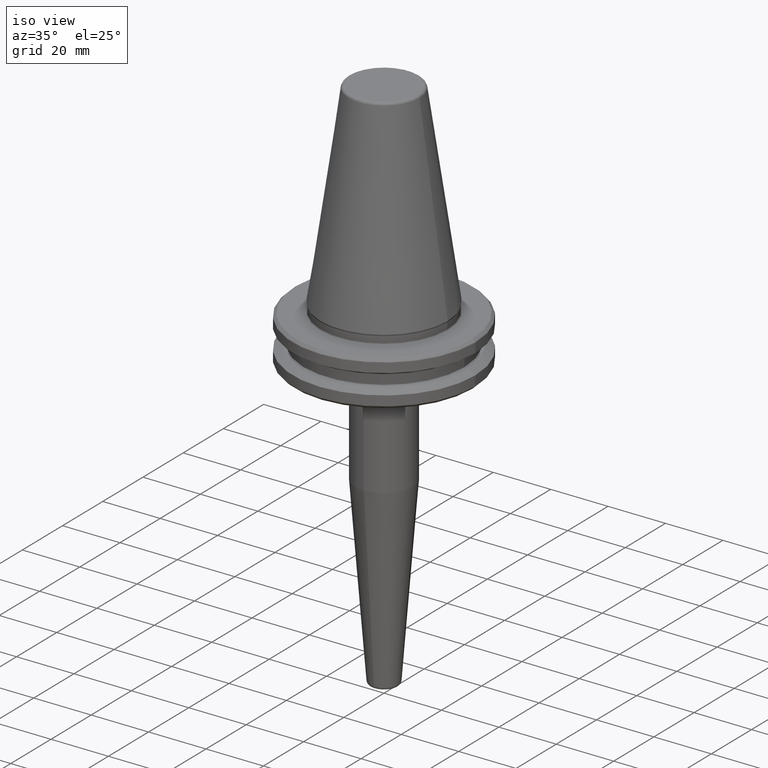
[diagram: clean part render]
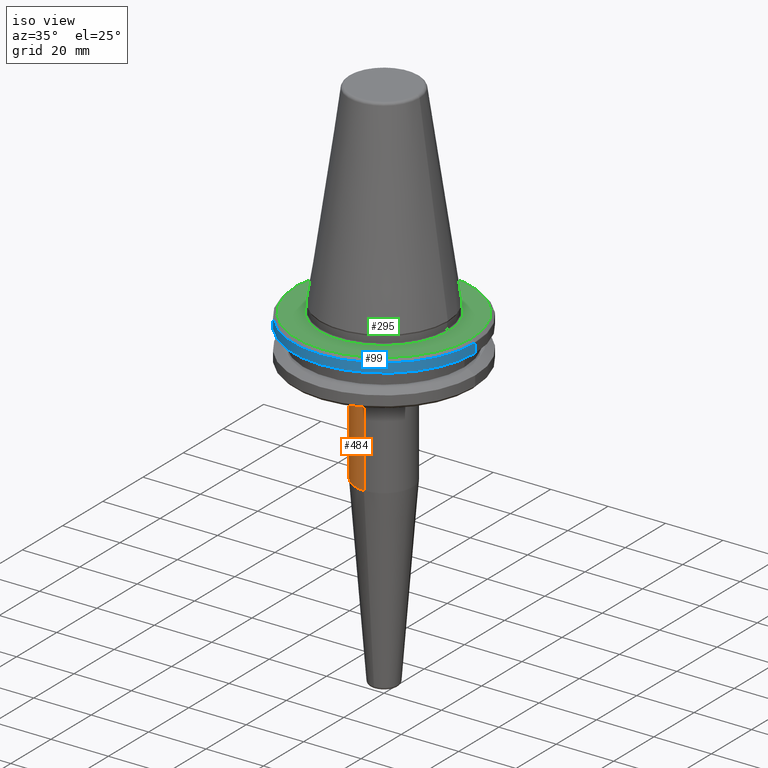
[diagram: same view with three faces highlighted in distinct colors, each labeled with its STEP entity id]
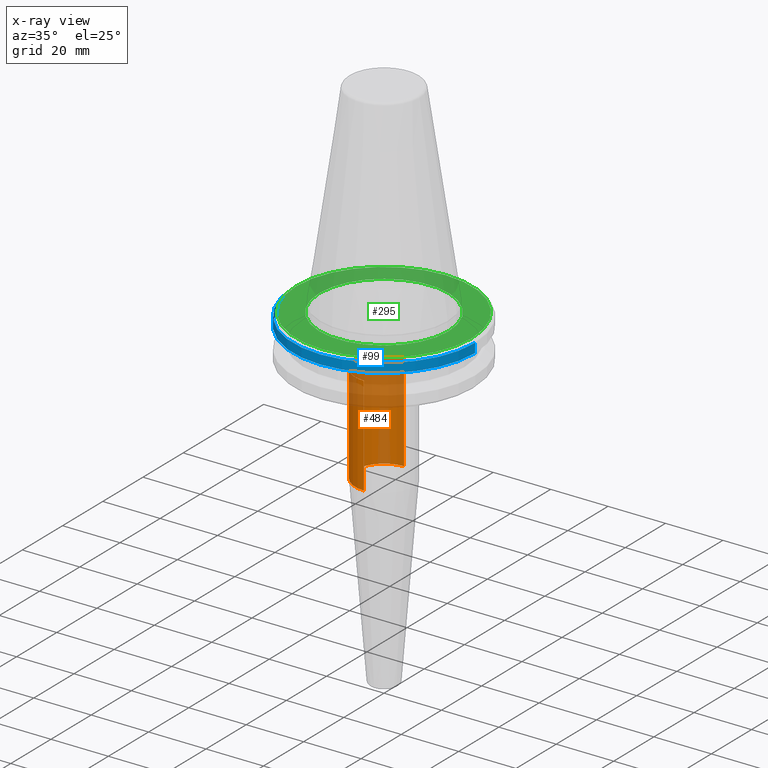
[diagram: x-ray of the same camera — body ghosted, the three highlighted faces saturated]
A machine part, iso view with three faces highlighted in distinct colors.
The next image is the same camera in x-ray (body ghosted, the three faces saturated) — at least one of them is partly hidden behind the body in this view.
Their STEP definitions:

[orange] entity #484 — the highlighted cylindrical surface (edge-blend (fillet) strip) has radius 10 mm, axis along (-0, 0, -1).
#8 = DIRECTION ( 'NONE',  ( 0.0000000000000000000, 1.000000000000000000, 0.0000000000000000000 ) ) ;
#104 = CARTESIAN_POINT ( 'NONE',  ( 0.0000000000000000000, 10.00000000000001400, -120.0000000000000000 ) ) ;
#129 = CARTESIAN_POINT ( 'NONE',  ( 1.224646799147354600E-015, 10.00000000000000200, -55.54743541484744200 ) ) ;
#195 = DIRECTION ( 'NONE',  ( -0.0000000000000000000, 1.946757673717420000E-016, -1.000000000000000000 ) ) ;
#254 = EDGE_CURVE ( 'NONE', #605, #876, #1203, .T. ) ;
#263 = VERTEX_POINT ( 'NONE', #598 ) ;
#276 = EDGE_CURVE ( 'NONE', #876, #1207, #402, .T. ) ;
#287 = EDGE_CURVE ( 'NONE', #605, #263, #634, .T. ) ;
#291 = ORIENTED_EDGE ( 'NONE', *, *, #488, .F. ) ;
#304 = CARTESIAN_POINT ( 'NONE',  ( 0.0000000000000000000, 2.395971582958279500E-015, -120.0000000000000000 ) ) ;
#369 = DIRECTION ( 'NONE',  ( 0.0000000000000000000, 1.000000000000000000, 0.0000000000000000000 ) ) ;
#373 = VECTOR ( 'NONE', #706, 1000.000000000000000 ) ;
#402 = LINE ( 'NONE', #104, #1139 ) ;
#413 = DIRECTION ( 'NONE',  ( -0.0000000000000000000, 1.946757673717420000E-016, -1.000000000000000000 ) ) ;
#431 = CARTESIAN_POINT ( 'NONE',  ( 0.0000000000000000000, -1.015138088673305800E-014, -55.54743541484744200 ) ) ;
#437 = AXIS2_PLACEMENT_3D ( 'NONE', #697, #1175, #505 ) ;
#484 = ADVANCED_FACE ( 'NONE', ( #917 ), #889, .T. ) ;
#488 = EDGE_CURVE ( 'NONE', #263, #1207, #1176, .T. ) ;
#500 = ORIENTED_EDGE ( 'NONE', *, *, #287, .F. ) ;
#505 = DIRECTION ( 'NONE',  ( 0.0000000000000000000, 1.000000000000000000, 3.469446951953608800E-016 ) ) ;
#508 = CARTESIAN_POINT ( 'NONE',  ( 0.0000000000000000000, 9.999999999999998200, -20.98284271247460400 ) ) ;
#598 = CARTESIAN_POINT ( 'NONE',  ( 0.0000000000000000000, -10.00000000000002100, -55.54743541484744200 ) ) ;
#605 = VERTEX_POINT ( 'NONE', #938 ) ;
#620 = DIRECTION ( 'NONE',  ( -0.0000000000000000000, 1.946757673717420000E-016, -1.000000000000000000 ) ) ;
#634 = LINE ( 'NONE', #898, #373 ) ;
#641 = ORIENTED_EDGE ( 'NONE', *, *, #254, .T. ) ;
#697 = CARTESIAN_POINT ( 'NONE',  ( 0.0000000000000000000, -1.688026949495919900E-014, -20.98284271247460700 ) ) ;
#706 = DIRECTION ( 'NONE',  ( -0.0000000000000000000, 1.946757673717420000E-016, -1.000000000000000000 ) ) ;
#876 = VERTEX_POINT ( 'NONE', #508 ) ;
#889 = CYLINDRICAL_SURFACE ( 'NONE', #1147, 10.00000000000001200 ) ;
#898 = CARTESIAN_POINT ( 'NONE',  ( 1.224646799147354600E-015, -10.00000000000001100, -120.0000000000000000 ) ) ;
#917 = FACE_OUTER_BOUND ( 'NONE', #1219, .T. ) ;
#938 = CARTESIAN_POINT ( 'NONE',  ( 1.224646799147355400E-015, -10.00000000000003400, -20.98284271247461100 ) ) ;
#999 = ORIENTED_EDGE ( 'NONE', *, *, #276, .T. ) ;
#1139 = VECTOR ( 'NONE', #195, 1000.000000000000000 ) ;
#1147 = AXIS2_PLACEMENT_3D ( 'NONE', #304, #413, #8 ) ;
#1175 = DIRECTION ( 'NONE',  ( -0.0000000000000000000, 1.946757673717420000E-016, -1.000000000000000000 ) ) ;
#1176 = CIRCLE ( 'NONE', #1191, 10.00000000000001100 ) ;
#1191 = AXIS2_PLACEMENT_3D ( 'NONE', #431, #620, #369 ) ;
#1203 = CIRCLE ( 'NONE', #437, 10.00000000000001600 ) ;
#1207 = VERTEX_POINT ( 'NONE', #129 ) ;
#1219 = EDGE_LOOP ( 'NONE', ( #500, #641, #999, #291 ) ) ;

[blue] entity #99 — the highlighted cylindrical surface (partial cylindrical patch) has radius 31.75 mm, axis along (-0, -0, 1).
#39 = CYLINDRICAL_SURFACE ( 'NONE', #231, 31.75000000000000000 ) ;
#74 = ORIENTED_EDGE ( 'NONE', *, *, #489, .F. ) ;
#93 = CARTESIAN_POINT ( 'NONE',  ( 31.75000000000000000, 0.0000000000000000000, 113.5216080541959500 ) ) ;
#99 = ADVANCED_FACE ( 'NONE', ( #496 ), #39, .T. ) ;
#113 = CARTESIAN_POINT ( 'NONE',  ( 0.0000000000000000000, 0.0000000000000000000, -4.365685424949250000 ) ) ;
#131 = VECTOR ( 'NONE', #414, 1000.000000000000000 ) ;
#212 = CARTESIAN_POINT ( 'NONE',  ( -31.75000000000000000, 3.888253587292846500E-015, -7.578163357943284800 ) ) ;
#231 = AXIS2_PLACEMENT_3D ( 'NONE', #913, #343, #907 ) ;
#258 = EDGE_LOOP ( 'NONE', ( #415, #1202, #330, #74 ) ) ;
#274 = DIRECTION ( 'NONE',  ( -0.0000000000000000000, -0.0000000000000000000, 1.000000000000000000 ) ) ;
#330 = ORIENTED_EDGE ( 'NONE', *, *, #830, .T. ) ;
#343 = DIRECTION ( 'NONE',  ( -0.0000000000000000000, -0.0000000000000000000, 1.000000000000000000 ) ) ;
#345 = VERTEX_POINT ( 'NONE', #422 ) ;
#414 = DIRECTION ( 'NONE',  ( -0.0000000000000000000, -0.0000000000000000000, 1.000000000000000000 ) ) ;
#415 = ORIENTED_EDGE ( 'NONE', *, *, #922, .F. ) ;
#422 = CARTESIAN_POINT ( 'NONE',  ( -31.75000000000000000, 3.888253587292846500E-015, -4.365685424949250000 ) ) ;
#449 = CIRCLE ( 'NONE', #1213, 31.75000000000000000 ) ;
#489 = EDGE_CURVE ( 'NONE', #345, #1124, #449, .T. ) ;
#496 = FACE_OUTER_BOUND ( 'NONE', #258, .T. ) ;
#632 = EDGE_CURVE ( 'NONE', #759, #1180, #1068, .T. ) ;
#647 = LINE ( 'NONE', #888, #131 ) ;
#759 = VERTEX_POINT ( 'NONE', #212 ) ;
#830 = EDGE_CURVE ( 'NONE', #1180, #1124, #1216, .T. ) ;
#847 = CARTESIAN_POINT ( 'NONE',  ( 0.0000000000000000000, 0.0000000000000000000, -7.578163357943284800 ) ) ;
#888 = CARTESIAN_POINT ( 'NONE',  ( -31.75000000000000000, 3.888253587292846500E-015, 113.5216080541959500 ) ) ;
#907 = DIRECTION ( 'NONE',  ( 1.000000000000000000, 0.0000000000000000000, 0.0000000000000000000 ) ) ;
#913 = CARTESIAN_POINT ( 'NONE',  ( 0.0000000000000000000, 0.0000000000000000000, 113.5216080541959500 ) ) ;
#922 = EDGE_CURVE ( 'NONE', #759, #345, #647, .T. ) ;
#923 = AXIS2_PLACEMENT_3D ( 'NONE', #847, #274, #946 ) ;
#946 = DIRECTION ( 'NONE',  ( 1.000000000000000000, 0.0000000000000000000, 0.0000000000000000000 ) ) ;
#954 = VECTOR ( 'NONE', #966, 1000.000000000000000 ) ;
#966 = DIRECTION ( 'NONE',  ( -0.0000000000000000000, -0.0000000000000000000, 1.000000000000000000 ) ) ;
#992 = CARTESIAN_POINT ( 'NONE',  ( 31.75000000000000000, 0.0000000000000000000, -4.365685424949250000 ) ) ;
#1002 = DIRECTION ( 'NONE',  ( -0.0000000000000000000, -0.0000000000000000000, 1.000000000000000000 ) ) ;
#1068 = CIRCLE ( 'NONE', #923, 31.75000000000000000 ) ;
#1124 = VERTEX_POINT ( 'NONE', #992 ) ;
#1180 = VERTEX_POINT ( 'NONE', #1194 ) ;
#1194 = CARTESIAN_POINT ( 'NONE',  ( 31.75000000000000000, 0.0000000000000000000, -7.578163357943284800 ) ) ;
#1202 = ORIENTED_EDGE ( 'NONE', *, *, #632, .T. ) ;
#1213 = AXIS2_PLACEMENT_3D ( 'NONE', #113, #1002, #1251 ) ;
#1216 = LINE ( 'NONE', #93, #954 ) ;
#1251 = DIRECTION ( 'NONE',  ( 1.000000000000000000, 0.0000000000000000000, 0.0000000000000000000 ) ) ;

[green] entity #295 — the highlighted planar face has unit normal (0, -0, 1).
#20 = EDGE_LOOP ( 'NONE', ( #1075, #156 ) ) ;
#62 = ORIENTED_EDGE ( 'NONE', *, *, #758, .T. ) ;
#89 = AXIS2_PLACEMENT_3D ( 'NONE', #503, #1169, #597 ) ;
#101 = CARTESIAN_POINT ( 'NONE',  ( -30.58431457505076200, 3.762817415969875600E-015, -3.199999999999994400 ) ) ;
#156 = ORIENTED_EDGE ( 'NONE', *, *, #855, .F. ) ;
#252 = CIRCLE ( 'NONE', #485, 22.50000000000000000 ) ;
#295 = ADVANCED_FACE ( 'NONE', ( #1229, #335 ), #1181, .T. ) ;
#314 = CARTESIAN_POINT ( 'NONE',  ( 0.0000000000000000000, 0.0000000000000000000, -3.199999999999994400 ) ) ;
#335 = FACE_BOUND ( 'NONE', #20, .T. ) ;
#372 = ORIENTED_EDGE ( 'NONE', *, *, #648, .T. ) ;
#391 = DIRECTION ( 'NONE',  ( -0.0000000000000000000, -0.0000000000000000000, 1.000000000000000000 ) ) ;
#417 = DIRECTION ( 'NONE',  ( 1.000000000000000000, 0.0000000000000000000, 0.0000000000000000000 ) ) ;
#485 = AXIS2_PLACEMENT_3D ( 'NONE', #1160, #585, #1252 ) ;
#494 = VERTEX_POINT ( 'NONE', #1048 ) ;
#503 = CARTESIAN_POINT ( 'NONE',  ( 0.0000000000000000000, 0.0000000000000000000, -3.199999999999994400 ) ) ;
#524 = DIRECTION ( 'NONE',  ( 1.000000000000000000, 0.0000000000000000000, 0.0000000000000000000 ) ) ;
#585 = DIRECTION ( 'NONE',  ( -0.0000000000000000000, -0.0000000000000000000, 1.000000000000000000 ) ) ;
#597 = DIRECTION ( 'NONE',  ( 1.000000000000000000, 0.0000000000000000000, 0.0000000000000000000 ) ) ;
#648 = EDGE_CURVE ( 'NONE', #825, #685, #1131, .T. ) ;
#666 = AXIS2_PLACEMENT_3D ( 'NONE', #314, #989, #417 ) ;
#685 = VERTEX_POINT ( 'NONE', #101 ) ;
#704 = CIRCLE ( 'NONE', #89, 22.50000000000000000 ) ;
#758 = EDGE_CURVE ( 'NONE', #685, #825, #826, .T. ) ;
#821 = EDGE_CURVE ( 'NONE', #1231, #494, #252, .T. ) ;
#825 = VERTEX_POINT ( 'NONE', #1195 ) ;
#826 = CIRCLE ( 'NONE', #666, 30.58431457505076200 ) ;
#855 = EDGE_CURVE ( 'NONE', #494, #1231, #704, .T. ) ;
#856 = AXIS2_PLACEMENT_3D ( 'NONE', #964, #391, #1063 ) ;
#885 = CARTESIAN_POINT ( 'NONE',  ( 0.0000000000000000000, 0.0000000000000000000, -3.200000000000000200 ) ) ;
#902 = CARTESIAN_POINT ( 'NONE',  ( 22.50000000000000000, 0.0000000000000000000, -3.199999999999996600 ) ) ;
#964 = CARTESIAN_POINT ( 'NONE',  ( 0.0000000000000000000, 0.0000000000000000000, -3.199999999999994400 ) ) ;
#989 = DIRECTION ( 'NONE',  ( -0.0000000000000000000, -0.0000000000000000000, 1.000000000000000000 ) ) ;
#1044 = EDGE_LOOP ( 'NONE', ( #372, #62 ) ) ;
#1048 = CARTESIAN_POINT ( 'NONE',  ( -22.50000000000000000, 2.755455298081544800E-015, -3.199999999999996600 ) ) ;
#1063 = DIRECTION ( 'NONE',  ( 1.000000000000000000, 0.0000000000000000000, 0.0000000000000000000 ) ) ;
#1075 = ORIENTED_EDGE ( 'NONE', *, *, #821, .F. ) ;
#1082 = DIRECTION ( 'NONE',  ( 0.0000000000000000000, -0.0000000000000000000, 1.000000000000000000 ) ) ;
#1131 = CIRCLE ( 'NONE', #856, 30.58431457505076200 ) ;
#1154 = AXIS2_PLACEMENT_3D ( 'NONE', #885, #1082, #524 ) ;
#1160 = CARTESIAN_POINT ( 'NONE',  ( 0.0000000000000000000, 0.0000000000000000000, -3.199999999999994400 ) ) ;
#1169 = DIRECTION ( 'NONE',  ( -0.0000000000000000000, -0.0000000000000000000, 1.000000000000000000 ) ) ;
#1181 = PLANE ( 'NONE',  #1154 ) ;
#1195 = CARTESIAN_POINT ( 'NONE',  ( 30.58431457505076200, 0.0000000000000000000, -3.199999999999994400 ) ) ;
#1229 = FACE_OUTER_BOUND ( 'NONE', #1044, .T. ) ;
#1231 = VERTEX_POINT ( 'NONE', #902 ) ;
#1252 = DIRECTION ( 'NONE',  ( 1.000000000000000000, 0.0000000000000000000, 0.0000000000000000000 ) ) ;